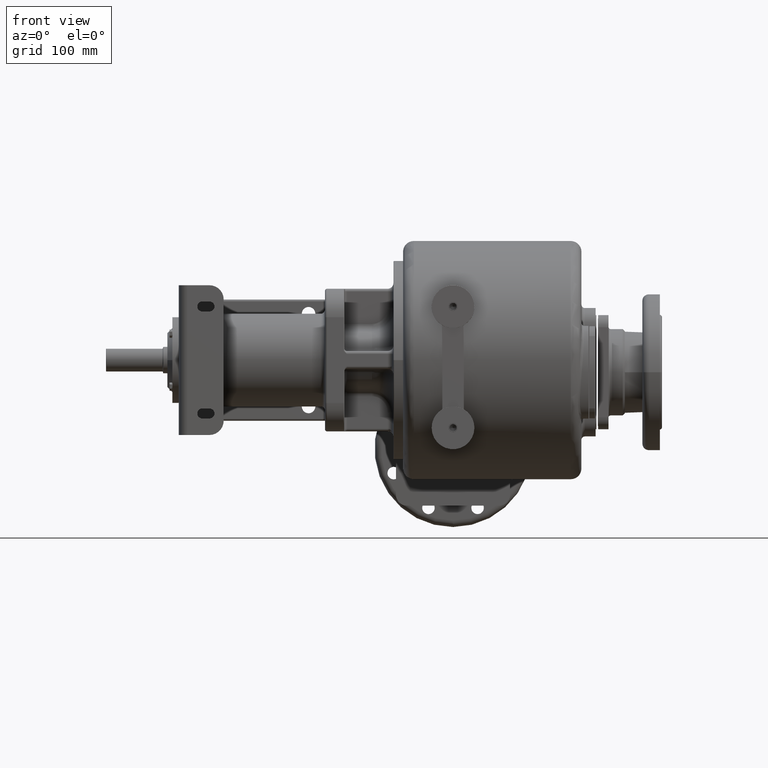
[diagram: clean part render]
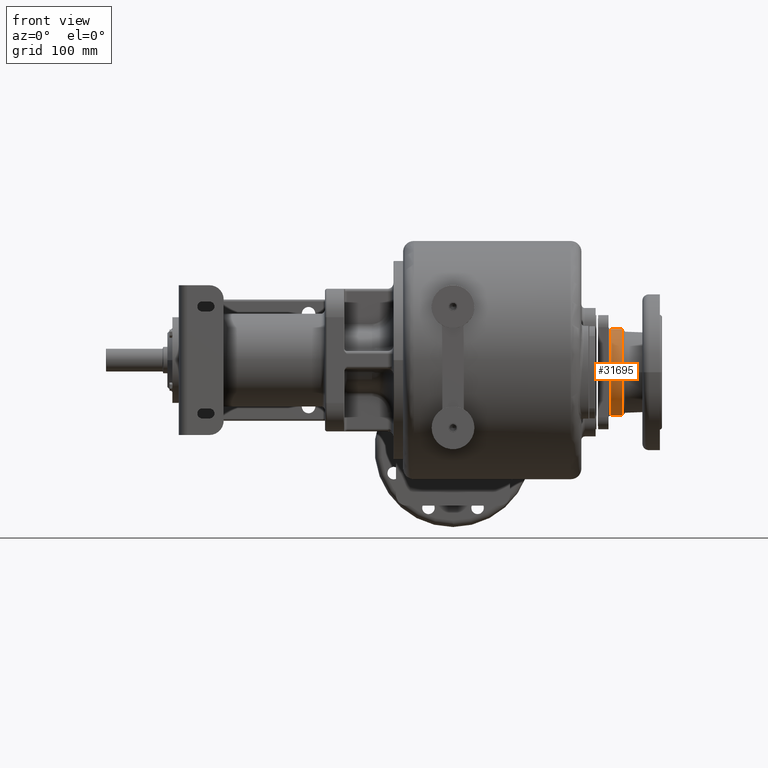
[diagram: same view with one face highlighted and labeled with its STEP entity id]
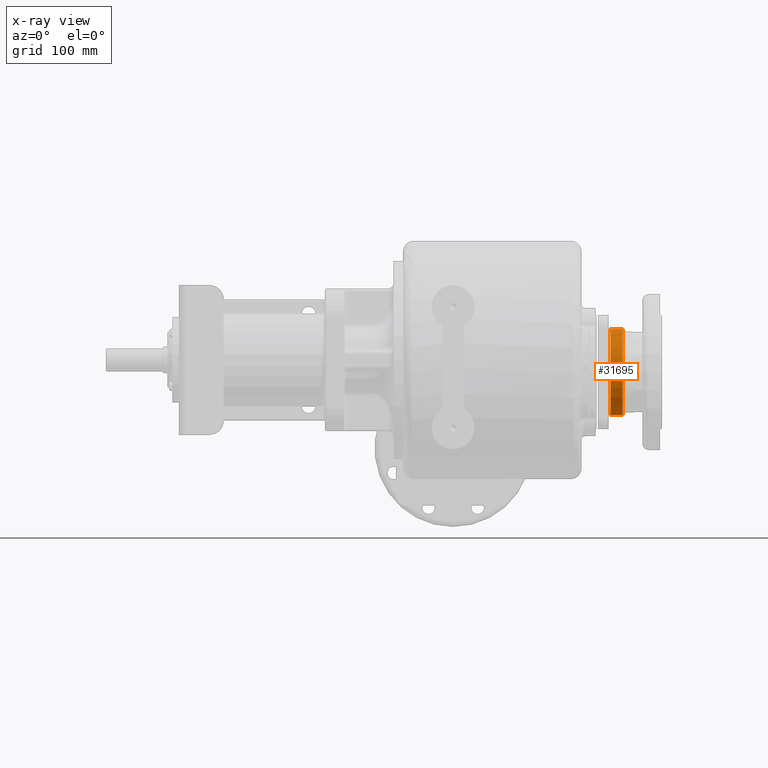
[diagram: x-ray of the same camera — body ghosted, the highlighted face saturated]
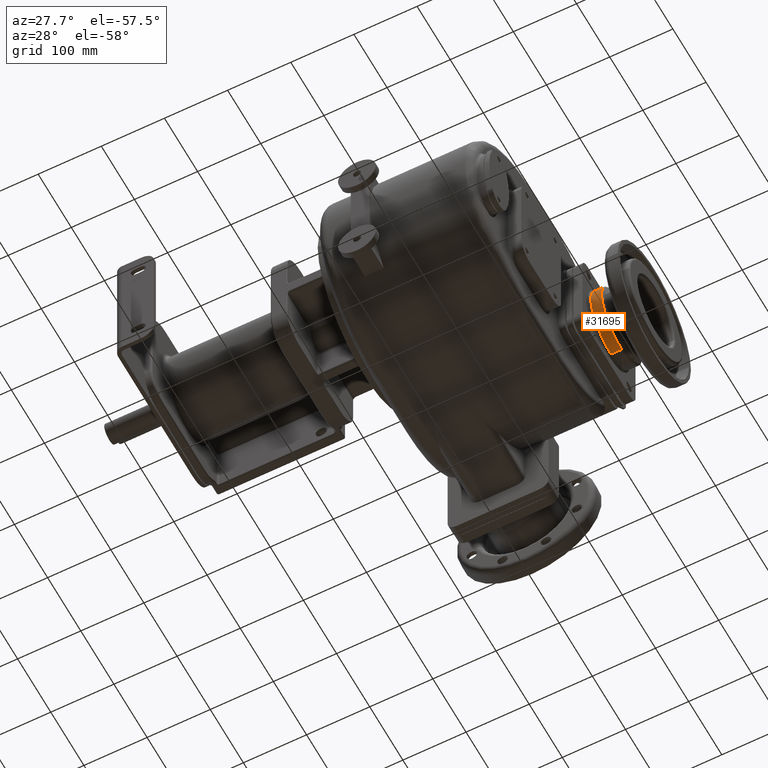
[diagram: same view with one face highlighted and labeled with its STEP entity id]
A machine part, front view. The second image highlights one B-rep face of the part: STEP entity #31695.
The next image is the same camera in x-ray: the body ghosted, the highlighted face saturated — about 0% of this face is hidden behind the body in this view.
A second angle (auxiliary view) of the same face is appended — the face is thin or edge-on in the first view.
In plain terms, the highlighted cylindrical surface (partial cylindrical patch) has radius 60.5 mm, axis along (1, 0, 0).
Its self-contained STEP definition (entity closure, byte-faithful):
#30308=CARTESIAN_POINT('',(2.38E2,3.35E2,-1.7E1));
#30309=DIRECTION('',(-1.E0,0.E0,0.E0));
#30310=DIRECTION('',(0.E0,0.E0,-1.E0));
#30311=AXIS2_PLACEMENT_3D('',#30308,#30309,#30310);
#30313=DIRECTION('',(-1.E0,0.E0,0.E0));
#30314=VECTOR('',#30313,1.7E1);
#30315=CARTESIAN_POINT('',(2.38E2,3.35E2,-7.75E1));
#30316=LINE('',#30315,#30314);
#30317=DIRECTION('',(-1.E0,0.E0,0.E0));
#30318=VECTOR('',#30317,1.7E1);
#30319=CARTESIAN_POINT('',(2.38E2,3.35E2,4.35E1));
#30320=LINE('',#30319,#30318);
#30335=CARTESIAN_POINT('',(2.21E2,3.35E2,-1.7E1));
#30336=DIRECTION('',(-1.E0,0.E0,0.E0));
#30337=DIRECTION('',(0.E0,0.E0,-1.E0));
#30338=AXIS2_PLACEMENT_3D('',#30335,#30336,#30337);
#31222=CARTESIAN_POINT('',(2.21E2,3.35E2,-7.75E1));
#31224=VERTEX_POINT('',#31222);
#31230=CARTESIAN_POINT('',(2.21E2,3.35E2,4.35E1));
#31232=VERTEX_POINT('',#31230);
#31250=CARTESIAN_POINT('',(2.38E2,3.35E2,4.35E1));
#31251=CARTESIAN_POINT('',(2.38E2,3.35E2,-7.75E1));
#31252=VERTEX_POINT('',#31250);
#31253=VERTEX_POINT('',#31251);
#31682=CARTESIAN_POINT('',(2.0005E2,3.35E2,-1.7E1));
#31683=DIRECTION('',(1.E0,0.E0,0.E0));
#31684=DIRECTION('',(0.E0,0.E0,-1.E0));
#31685=AXIS2_PLACEMENT_3D('',#31682,#31683,#31684);
#31686=CYLINDRICAL_SURFACE('',#31685,6.05E1);
#31688=ORIENTED_EDGE('',*,*,#31687,.F.);
#31689=ORIENTED_EDGE('',*,*,#31677,.T.);
#31691=ORIENTED_EDGE('',*,*,#31690,.T.);
#31692=ORIENTED_EDGE('',*,*,#31673,.F.);
#31693=EDGE_LOOP('',(#31688,#31689,#31691,#31692));
#31694=FACE_OUTER_BOUND('',#31693,.F.);
#31695=ADVANCED_FACE('',(#31694),#31686,.T.);
#30312=CIRCLE('',#30311,6.05E1);
#30339=CIRCLE('',#30338,6.05E1);
#31673=EDGE_CURVE('',#31252,#31232,#30320,.T.);
#31677=EDGE_CURVE('',#31253,#31224,#30316,.T.);
#31687=EDGE_CURVE('',#31253,#31252,#30312,.T.);
#31690=EDGE_CURVE('',#31224,#31232,#30339,.T.);